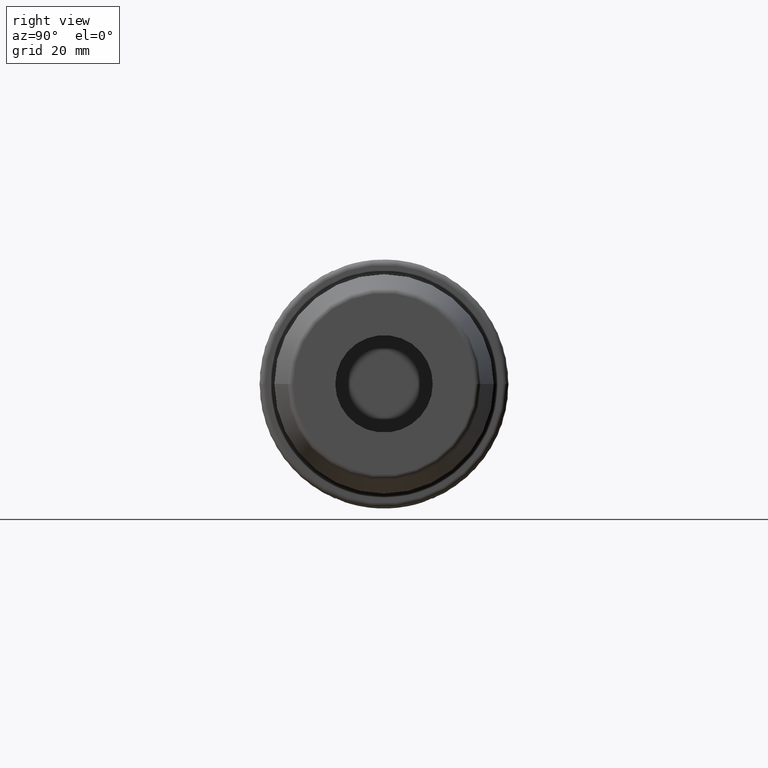
[diagram: clean part render]
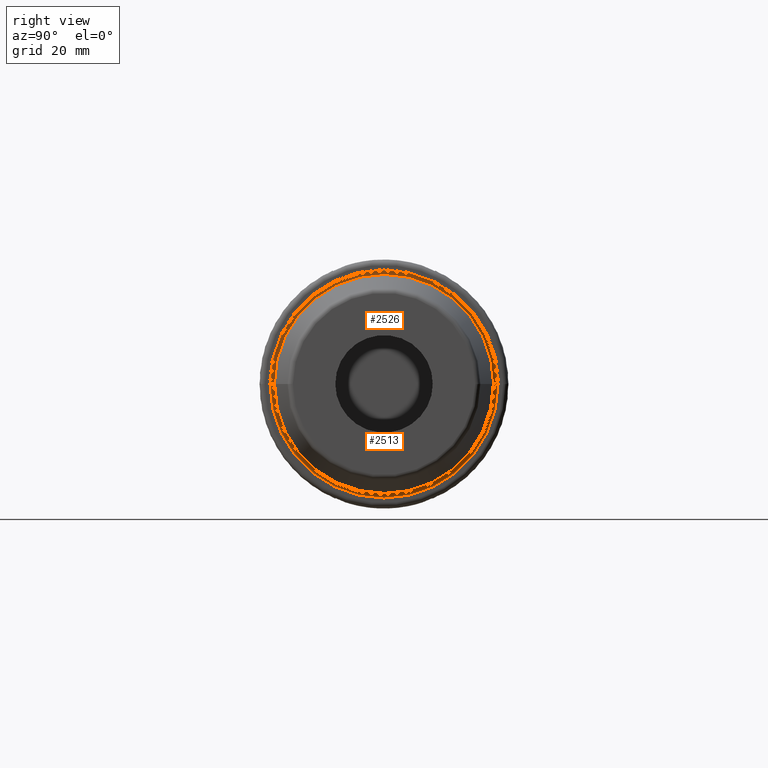
[diagram: same view with one multi-face feature highlighted, each face labeled with its STEP entity id]
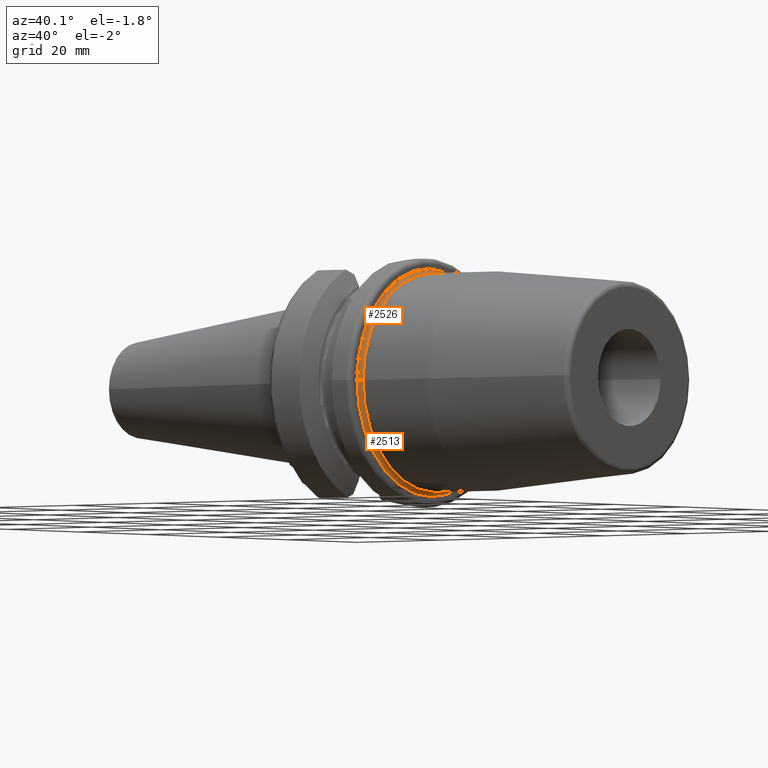
[diagram: same view with one multi-face feature highlighted, each face labeled with its STEP entity id]
A machine part, right view. The highlighted faces form ONE feature: a constant-radius fillet chain: 2 tangent blend faces with common blend radius 0.8 mm. The faces share edges in the B-rep.
A second angle (auxiliary view) of the same feature is appended — it is thin or edge-on in the first view.
Their STEP definitions:
[1] entity #2526 (Torus):
#827=CARTESIAN_POINT('',(2.2E1,0.E0,0.E0));
#828=DIRECTION('',(1.E0,0.E0,0.E0));
#829=DIRECTION('',(0.E0,1.E0,0.E0));
#830=AXIS2_PLACEMENT_3D('',#827,#828,#829);
#832=CARTESIAN_POINT('',(2.28E1,-2.105E1,1.559863349598E-14));
#833=DIRECTION('',(0.E0,0.E0,-1.E0));
#834=DIRECTION('',(-1.E0,6.661338147751E-14,0.E0));
#835=AXIS2_PLACEMENT_3D('',#832,#833,#834);
#837=CARTESIAN_POINT('',(2.28E1,2.105E1,-1.837419105755E-14));
#838=DIRECTION('',(0.E0,0.E0,1.E0));
#839=DIRECTION('',(-1.E0,-6.217248937901E-14,0.E0));
#840=AXIS2_PLACEMENT_3D('',#837,#838,#839);
#842=CARTESIAN_POINT('',(2.28E1,0.E0,0.E0));
#843=DIRECTION('',(1.E0,0.E0,0.E0));
#844=DIRECTION('',(0.E0,1.E0,0.E0));
#845=AXIS2_PLACEMENT_3D('',#842,#843,#844);
#1387=CARTESIAN_POINT('',(2.2E1,-2.105E1,0.E0));
#1388=CARTESIAN_POINT('',(2.2E1,2.105E1,0.E0));
#1389=VERTEX_POINT('',#1387);
#1390=VERTEX_POINT('',#1388);
#1391=CARTESIAN_POINT('',(2.28E1,-2.025E1,0.E0));
#1392=CARTESIAN_POINT('',(2.28E1,2.025E1,0.E0));
#1393=VERTEX_POINT('',#1391);
#1394=VERTEX_POINT('',#1392);
#2514=CARTESIAN_POINT('',(2.28E1,0.E0,0.E0));
#2515=DIRECTION('',(1.E0,0.E0,0.E0));
#2516=DIRECTION('',(0.E0,9.999711696580E-1,-7.593408507118E-3));
#2517=AXIS2_PLACEMENT_3D('',#2514,#2515,#2516);
#2518=TOROIDAL_SURFACE('',#2517,2.105E1,8.E-1);
#2519=ORIENTED_EDGE('',*,*,#2494,.F.);
#2520=ORIENTED_EDGE('',*,*,#2509,.T.);
#2522=ORIENTED_EDGE('',*,*,#2521,.T.);
#2523=ORIENTED_EDGE('',*,*,#2505,.F.);
#2524=EDGE_LOOP('',(#2519,#2520,#2522,#2523));
#2525=FACE_OUTER_BOUND('',#2524,.F.);
#2526=ADVANCED_FACE('',(#2525),#2518,.F.);
#831=CIRCLE('',#830,2.105E1);
#836=CIRCLE('',#835,8.E-1);
#841=CIRCLE('',#840,8.E-1);
#846=CIRCLE('',#845,2.025E1);
#2494=EDGE_CURVE('',#1390,#1389,#831,.T.);
#2505=EDGE_CURVE('',#1389,#1393,#836,.T.);
#2509=EDGE_CURVE('',#1390,#1394,#841,.T.);
#2521=EDGE_CURVE('',#1394,#1393,#846,.T.);
[2] entity #2513 (Torus):
#822=CARTESIAN_POINT('',(2.2E1,0.E0,0.E0));
#823=DIRECTION('',(1.E0,0.E0,0.E0));
#824=DIRECTION('',(0.E0,-1.E0,0.E0));
#825=AXIS2_PLACEMENT_3D('',#822,#823,#824);
#832=CARTESIAN_POINT('',(2.28E1,-2.105E1,1.559863349598E-14));
#833=DIRECTION('',(0.E0,0.E0,-1.E0));
#834=DIRECTION('',(-1.E0,6.661338147751E-14,0.E0));
#835=AXIS2_PLACEMENT_3D('',#832,#833,#834);
#837=CARTESIAN_POINT('',(2.28E1,2.105E1,-1.837419105755E-14));
#838=DIRECTION('',(0.E0,0.E0,1.E0));
#839=DIRECTION('',(-1.E0,-6.217248937901E-14,0.E0));
#840=AXIS2_PLACEMENT_3D('',#837,#838,#839);
#852=CARTESIAN_POINT('',(2.28E1,0.E0,0.E0));
#853=DIRECTION('',(1.E0,0.E0,0.E0));
#854=DIRECTION('',(0.E0,-1.E0,0.E0));
#855=AXIS2_PLACEMENT_3D('',#852,#853,#854);
#1387=CARTESIAN_POINT('',(2.2E1,-2.105E1,0.E0));
#1388=CARTESIAN_POINT('',(2.2E1,2.105E1,0.E0));
#1389=VERTEX_POINT('',#1387);
#1390=VERTEX_POINT('',#1388);
#1391=CARTESIAN_POINT('',(2.28E1,-2.025E1,0.E0));
#1392=CARTESIAN_POINT('',(2.28E1,2.025E1,0.E0));
#1393=VERTEX_POINT('',#1391);
#1394=VERTEX_POINT('',#1392);
#2499=CARTESIAN_POINT('',(2.28E1,0.E0,0.E0));
#2500=DIRECTION('',(1.E0,0.E0,0.E0));
#2501=DIRECTION('',(0.E0,-9.999711696580E-1,7.593408507117E-3));
#2502=AXIS2_PLACEMENT_3D('',#2499,#2500,#2501);
#2503=TOROIDAL_SURFACE('',#2502,2.105E1,8.E-1);
#2504=ORIENTED_EDGE('',*,*,#2492,.F.);
#2506=ORIENTED_EDGE('',*,*,#2505,.T.);
#2508=ORIENTED_EDGE('',*,*,#2507,.T.);
#2510=ORIENTED_EDGE('',*,*,#2509,.F.);
#2511=EDGE_LOOP('',(#2504,#2506,#2508,#2510));
#2512=FACE_OUTER_BOUND('',#2511,.F.);
#2513=ADVANCED_FACE('',(#2512),#2503,.F.);
#826=CIRCLE('',#825,2.105E1);
#836=CIRCLE('',#835,8.E-1);
#841=CIRCLE('',#840,8.E-1);
#856=CIRCLE('',#855,2.025E1);
#2492=EDGE_CURVE('',#1389,#1390,#826,.T.);
#2505=EDGE_CURVE('',#1389,#1393,#836,.T.);
#2507=EDGE_CURVE('',#1393,#1394,#856,.T.);
#2509=EDGE_CURVE('',#1390,#1394,#841,.T.);